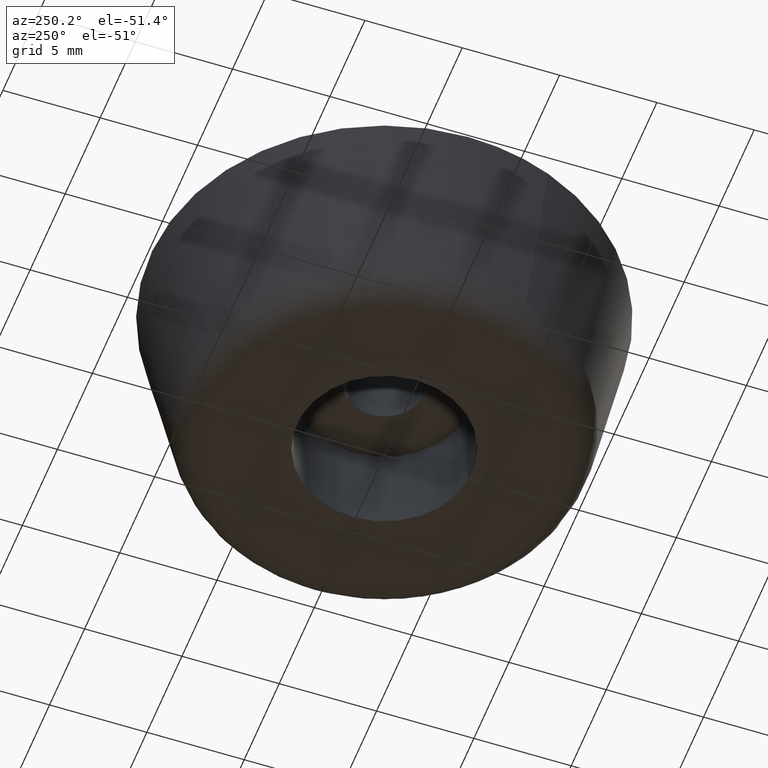
[diagram: clean part render]
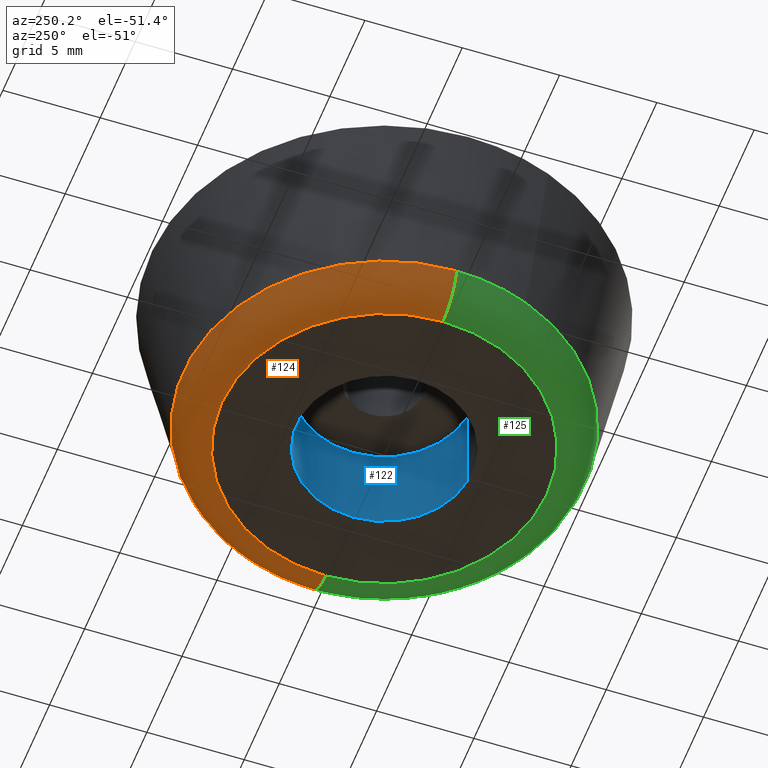
[diagram: same view with three faces highlighted in distinct colors, each labeled with its STEP entity id]
A machine part, auxiliary view with three faces highlighted in distinct colors.
Their STEP definitions:

[orange] entity #124 — the highlighted face is a freeform B-spline surface patch.
#124=ADVANCED_FACE('',(#259),#258,.T.);
#258=( BOUNDED_SURFACE() B_SPLINE_SURFACE( 2,2,((#404,#405,#406,#407,#408),(#409,#410,#411,#412,#413),(#414,#415,#416,#417,#418),(#419,#420,#421,#422,#423),(#424,#425,#426,#427,#428)), .UNSPECIFIED.,.F.,.F.,.F.) B_SPLINE_SURFACE_WITH_KNOTS((3,2,3),(3,2,3),(0.00000000000E+000,5.00000000000E-001,1.00000000000E+000),(0.00000000000E+000,5.00000000000E-001,1.00000000000E+000), .UNSPECIFIED. ) GEOMETRIC_REPRESENTATION_ITEM() RATIONAL_B_SPLINE_SURFACE(((1.00000000000E+000,7.73342134340E-001,1.00000000000E+000,7.73342134340E-001,1.00000000000E+000),(7.07106781187E-001,5.46835467369E-001,7.07106781187E-001,5.46835467369E-001,7.07106781187E-001),(1.00000000000E+000,7.73342134340E-001,1.00000000000E+000,7.73342134340E-001,1.00000000000E+000),(7.07106781187E-001,5.46835467369E-001,7.07106781187E-001,5.46835467369E-001,7.07106781187E-001),(1.00000000000E+000,7.73342134340E-001,1.00000000000E+000,7.73342134340E-001,1.00000000000E+000))) REPRESENTATION_ITEM('') SURFACE() );
#259=FACE_OUTER_BOUND('',#429,.T.);
#404=CARTESIAN_POINT('',(6.39923102714E+000,-1.19843337755E-014,1.60776777301E+000));
#405=CARTESIAN_POINT('',(6.72078454483E+000,-3.58160320841E-015,4.59397402656E-015));
#406=CARTESIAN_POINT('',(8.36039238717E+000,-4.93087802339E-015,4.44089209850E-015));
#407=CARTESIAN_POINT('',(1.00000002295E+001,-6.28015283836E-015,4.01972727324E-015));
#408=CARTESIAN_POINT('',(1.03215537472E+001,-1.52121124710E-014,1.60776777301E+000));
#409=CARTESIAN_POINT('',(6.39923102714E+000,6.39923102714E+000,1.60776777301E+000));
#410=CARTESIAN_POINT('',(6.72078454483E+000,6.72078454483E+000,4.07327598544E-014));
#411=CARTESIAN_POINT('',(8.36039238717E+000,8.36039238717E+000,4.96595549086E-014));
#412=CARTESIAN_POINT('',(1.00000002295E+001,1.00000002295E+001,5.80248791283E-014));
#413=CARTESIAN_POINT('',(1.03215537472E+001,1.03215537472E+001,1.60776777301E+000));
#414=CARTESIAN_POINT('',(5.65792915640E-015,6.39923102714E+000,1.60776777301E+000));
#415=CARTESIAN_POINT('',(5.94223316345E-015,6.72078454483E+000,4.07715194857E-014));
#416=CARTESIAN_POINT('',(7.39190500323E-015,8.36039238717E+000,4.95159468983E-014));
#417=CARTESIAN_POINT('',(8.84157684300E-015,1.00000002295E+001,5.79989220853E-014));
#418=CARTESIAN_POINT('',(9.12588085005E-015,1.03215537472E+001,1.60776777301E+000));
#419=CARTESIAN_POINT('',(-6.39923102714E+000,6.39923102714E+000,1.60776777301E+000));
#420=CARTESIAN_POINT('',(-6.72078454483E+000,6.72078454483E+000,4.07327598544E-014));
#421=CARTESIAN_POINT('',(-8.36039238717E+000,8.36039238717E+000,4.96595549086E-014));
#422=CARTESIAN_POINT('',(-1.00000002295E+001,1.00000002295E+001,5.80248791283E-014));
#423=CARTESIAN_POINT('',(-1.03215537472E+001,1.03215537472E+001,1.60776777301E+000));
#424=CARTESIAN_POINT('',(-6.39923102714E+000,-6.68475462740E-016,1.60776777301E+000));
#425=CARTESIAN_POINT('',(-6.72078454483E+000,8.30286311849E-015,4.59397402656E-015));
#426=CARTESIAN_POINT('',(-8.36039238717E+000,9.85293198307E-015,4.44089209850E-015));
#427=CARTESIAN_POINT('',(-1.00000002295E+001,1.14030008476E-014,4.01972727324E-015));
#428=CARTESIAN_POINT('',(-1.03215537472E+001,3.03964922913E-015,1.60776777301E+000));
#429=EDGE_LOOP('',(#549,#550,#551,#552,#553));
#549=ORIENTED_EDGE('',*,*,#621,.F.);
#550=ORIENTED_EDGE('',*,*,#622,.F.);
#551=ORIENTED_EDGE('',*,*,#623,.F.);
#552=ORIENTED_EDGE('',*,*,#600,.F.);
#553=ORIENTED_EDGE('',*,*,#624,.T.);
#600=EDGE_CURVE('',#713,#714,#715,.T.);
#621=EDGE_CURVE('',#858,#859,#860,.T.);
#622=EDGE_CURVE('',#866,#858,#867,.T.);
#623=EDGE_CURVE('',#714,#866,#873,.T.);
#624=EDGE_CURVE('',#713,#859,#879,.T.);
#713=VERTEX_POINT('',#982);
#714=VERTEX_POINT('',#983);
#715=CIRCLE('',#987,8.36039238718E+000);
#858=VERTEX_POINT('',#1081);
#859=VERTEX_POINT('',#1082);
#860=CIRCLE('',#1086,1.03215537472E+001);
#866=VERTEX_POINT('',#1087);
#867=CIRCLE('',#1091,1.03215537472E+001);
#873=(BOUNDED_CURVE() B_SPLINE_CURVE(2,(#1092,#1093,#1094),.UNSPECIFIED.,.F.,.F.) B_SPLINE_CURVE_WITH_KNOTS((3,3),(5.00000000000E-001,1.00000000000E+000),.UNSPECIFIED.) CURVE() GEOMETRIC_REPRESENTATION_ITEM() RATIONAL_B_SPLINE_CURVE((1.00000000000E+000,7.73342134340E-001,1.00000000000E+000)) REPRESENTATION_ITEM('') );
#879=(BOUNDED_CURVE() B_SPLINE_CURVE(3,(#1095,#1096,#1097,#1098,#1099),.UNSPECIFIED.,.F.,.F.) B_SPLINE_CURVE_WITH_KNOTS((4,1,4),(4.99999961884E-001,7.49999978724E-001,1.00000000000E+000),.UNSPECIFIED.) CURVE() GEOMETRIC_REPRESENTATION_ITEM() RATIONAL_B_SPLINE_CURVE((1.00000000000E+000,1.00000000000E+000,1.00000000000E+000,1.00000000000E+000,1.00000000000E+000)) REPRESENTATION_ITEM('') );
#982=CARTESIAN_POINT('',(-8.36039238718E+000,-9.28938916154E-016,4.33680868994E-015));
#983=CARTESIAN_POINT('',(8.36039238718E+000,-6.80936788437E-015,4.33680868994E-015));
#984=CARTESIAN_POINT('',(1.01138251249E-014,9.48800476251E-017,4.33680868994E-015));
#985=DIRECTION('',(0.00000000000E+000,0.00000000000E+000,-1.00000000000E+000));
#986=DIRECTION('',(-1.00000000000E+000,-0.00000000000E+000,-0.00000000000E+000));
#987=AXIS2_PLACEMENT_3D('',#984,#985,#986);
#1081=CARTESIAN_POINT('',(9.59764434138E+000,3.79732733021E+000,1.60776777301E+000));
#1082=CARTESIAN_POINT('',(-1.03215536146E+001,1.65442096115E-003,1.60776777301E+000));
#1083=CARTESIAN_POINT('',(1.01138251249E-014,9.48800476251E-017,1.60776777301E+000));
#1084=DIRECTION('',(-6.00116740470E-016,-2.37438365125E-016,1.00000000000E+000));
#1085=DIRECTION('',(9.29864299160E-001,3.67902684345E-001,6.45381344187E-016));
#1086=AXIS2_PLACEMENT_3D('',#1083,#1084,#1085);
#1087=CARTESIAN_POINT('',(1.03215537472E+001,-1.42569573774E-014,1.60776777301E+000));
#1088=CARTESIAN_POINT('',(1.01138251249E-014,9.48800476251E-017,1.60776777301E+000));
#1089=DIRECTION('',(-6.00116740470E-016,-2.37438365125E-016,1.00000000000E+000));
#1090=DIRECTION('',(9.29864299160E-001,3.67902684345E-001,6.45381344187E-016));
#1091=AXIS2_PLACEMENT_3D('',#1088,#1089,#1090);
#1092=CARTESIAN_POINT('',(8.36039238717E+000,-4.93087802339E-015,4.44089209850E-015));
#1093=CARTESIAN_POINT('',(1.00000002295E+001,-6.28015283836E-015,4.01972727324E-015));
#1094=CARTESIAN_POINT('',(1.03215537472E+001,-1.52121124710E-014,1.60776777301E+000));
#1095=CARTESIAN_POINT('',(-8.36039219385E+000,8.28966513076E-015,1.37840521046E-014));
#1096=CARTESIAN_POINT('',(-8.81492807613E+000,8.65770073101E-015,-2.57426640261E-003));
#1097=CARTESIAN_POINT('',(-9.73180815282E+000,7.72412864098E-015,3.27141561050E-001));
#1098=CARTESIAN_POINT('',(-1.02349361680E+001,3.94164339329E-015,1.16155381377E+000));
#1099=CARTESIAN_POINT('',(-1.03215537472E+001,1.77635683940E-015,1.60776777301E+000));

[blue] entity #122 — the highlighted cylindrical surface (partial cylindrical patch) has radius 4.5 mm, axis along (0, 0, -1).
#122=ADVANCED_FACE('',(#239),#238,.F.);
#238=CYLINDRICAL_SURFACE('',#397,4.50000000000E+000);
#239=FACE_OUTER_BOUND('',#398,.T.);
#394=CARTESIAN_POINT('',(-1.47203645283E-016,2.33186139093E-016,2.50000000000E+000));
#395=DIRECTION('',(5.39249104633E-015,6.40979302462E-016,-1.00000000000E+000));
#396=DIRECTION('',(-1.18034234657E-001,9.93009526364E-001,-1.36887088578E-027));
#397=AXIS2_PLACEMENT_3D('',#394,#395,#396);
#398=EDGE_LOOP('',(#541,#542,#543,#544));
#541=ORIENTED_EDGE('',*,*,#614,.F.);
#542=ORIENTED_EDGE('',*,*,#619,.T.);
#543=ORIENTED_EDGE('',*,*,#603,.T.);
#544=ORIENTED_EDGE('',*,*,#620,.F.);
#603=EDGE_CURVE('',#728,#727,#735,.T.);
#614=EDGE_CURVE('',#805,#804,#812,.T.);
#619=EDGE_CURVE('',#805,#728,#846,.T.);
#620=EDGE_CURVE('',#804,#727,#852,.T.);
#727=VERTEX_POINT('',#992);
#728=VERTEX_POINT('',#993);
#735=CIRCLE('',#1001,4.50000000000E+000);
#804=VERTEX_POINT('',#1047);
#805=VERTEX_POINT('',#1048);
#812=CIRCLE('',#1056,4.50000000000E+000);
#846=(BOUNDED_CURVE() B_SPLINE_CURVE(1,(#1077,#1078),.UNSPECIFIED.,.F.,.F.) B_SPLINE_CURVE_WITH_KNOTS((2,2),(8.33333383004E-002,9.16666664635E-001),.UNSPECIFIED.) CURVE() GEOMETRIC_REPRESENTATION_ITEM() RATIONAL_B_SPLINE_CURVE((1.00000000000E+000,1.00000000000E+000)) REPRESENTATION_ITEM('') );
#852=(BOUNDED_CURVE() B_SPLINE_CURVE(1,(#1079,#1080),.UNSPECIFIED.,.F.,.F.) B_SPLINE_CURVE_WITH_KNOTS((2,2),(8.33333333333E-002,9.16666666667E-001),.UNSPECIFIED.) CURVE() GEOMETRIC_REPRESENTATION_ITEM() RATIONAL_B_SPLINE_CURVE((7.50000000000E-001,7.50000000000E-001)) REPRESENTATION_ITEM('') );
#992=CARTESIAN_POINT('',(5.31926375411E-001,-4.46845099908E+000,3.15923728340E-014));
#993=CARTESIAN_POINT('',(-5.31926375409E-001,4.46845099908E+000,1.58690485392E-014));
#998=CARTESIAN_POINT('',(1.24344978758E-012,5.63993296510E-013,2.37307106866E-014));
#999=DIRECTION('',(-5.87482237134E-014,-8.75278521733E-015,-1.00000000000E+000));
#1000=DIRECTION('',(-1.18205861202E-001,9.92989110906E-001,-1.74703603276E-015));
#1001=AXIS2_PLACEMENT_3D('',#998,#999,#1000);
#1047=CARTESIAN_POINT('',(5.31152421836E-001,-4.46854306288E+000,5.00000000000E+000));
#1048=CARTESIAN_POINT('',(-5.31154055956E-001,4.46854286864E+000,5.00000000000E+000));
#1053=CARTESIAN_POINT('',(3.38928884958E-012,-5.26245713672E-013,5.00000000000E+000));
#1054=DIRECTION('',(-9.86864910779E-016,6.28036983474E-016,-1.00000000000E+000));
#1055=DIRECTION('',(1.18033871518E-001,-9.93009569528E-001,-7.40130220692E-016));
#1056=AXIS2_PLACEMENT_3D('',#1053,#1054,#1055);
#1077=CARTESIAN_POINT('',(-5.31154055956E-001,4.46854286864E+000,4.99999997020E+000));
#1078=CARTESIAN_POINT('',(-5.31154055956E-001,4.46854286864E+000,1.21919146445E-008));
#1079=CARTESIAN_POINT('',(5.31154055956E-001,-4.46854286864E+000,5.00000000000E+000));
#1080=CARTESIAN_POINT('',(5.31154055956E-001,-4.46854286864E+000,2.71634566692E-014));

[green] entity #125 — the highlighted face is a freeform B-spline surface patch.
#125=ADVANCED_FACE('',(#269),#268,.T.);
#268=( BOUNDED_SURFACE() B_SPLINE_SURFACE( 2,2,((#430,#431,#432,#433,#434),(#435,#436,#437,#438,#439),(#440,#441,#442,#443,#444),(#445,#446,#447,#448,#449),(#450,#451,#452,#453,#454)), .UNSPECIFIED.,.F.,.F.,.F.) B_SPLINE_SURFACE_WITH_KNOTS((3,2,3),(3,2,3),(0.00000000000E+000,5.00000000000E-001,1.00000000000E+000),(0.00000000000E+000,5.00000000000E-001,1.00000000000E+000), .UNSPECIFIED. ) GEOMETRIC_REPRESENTATION_ITEM() RATIONAL_B_SPLINE_SURFACE(((1.00000000000E+000,7.73342134340E-001,1.00000000000E+000,7.73342134340E-001,1.00000000000E+000),(7.07106781187E-001,5.46835467369E-001,7.07106781187E-001,5.46835467369E-001,7.07106781187E-001),(1.00000000000E+000,7.73342134340E-001,1.00000000000E+000,7.73342134340E-001,1.00000000000E+000),(7.07106781187E-001,5.46835467369E-001,7.07106781187E-001,5.46835467369E-001,7.07106781187E-001),(1.00000000000E+000,7.73342134340E-001,1.00000000000E+000,7.73342134340E-001,1.00000000000E+000))) REPRESENTATION_ITEM('') SURFACE() );
#269=FACE_OUTER_BOUND('',#455,.T.);
#430=CARTESIAN_POINT('',(-6.39923102714E+000,-6.68475462740E-016,1.60776777301E+000));
#431=CARTESIAN_POINT('',(-6.72078454483E+000,8.30286311849E-015,4.59397402656E-015));
#432=CARTESIAN_POINT('',(-8.36039238717E+000,9.85293198307E-015,4.44089209850E-015));
#433=CARTESIAN_POINT('',(-1.00000002295E+001,1.14030008476E-014,4.01972727324E-015));
#434=CARTESIAN_POINT('',(-1.03215537472E+001,3.03964922913E-015,1.60776777301E+000));
#435=CARTESIAN_POINT('',(-6.39923102714E+000,-6.39923102714E+000,1.60776777301E+000));
#436=CARTESIAN_POINT('',(-6.72078454483E+000,-6.72078454483E+000,-3.15448118013E-014));
#437=CARTESIAN_POINT('',(-8.36039238717E+000,-8.36039238717E+000,-4.07777707116E-014));
#438=CARTESIAN_POINT('',(-1.00000002295E+001,-1.00000002295E+001,-4.99854245819E-014));
#439=CARTESIAN_POINT('',(-1.03215537472E+001,-1.03215537472E+001,1.60776777301E+000));
#440=CARTESIAN_POINT('',(-6.44160893584E-015,-6.39923102714E+000,1.60776777301E+000));
#441=CARTESIAN_POINT('',(-6.76529189151E-015,-6.72078454483E+000,-3.15835714326E-014));
#442=CARTESIAN_POINT('',(-8.41575778088E-015,-8.36039238717E+000,-4.06341627013E-014));
#443=CARTESIAN_POINT('',(-1.00662236703E-014,-1.00000002295E+001,-4.99594675388E-014));
#444=CARTESIAN_POINT('',(-1.03899066259E-014,-1.03215537472E+001,1.60776777301E+000));
#445=CARTESIAN_POINT('',(6.39923102714E+000,-6.39923102714E+000,1.60776777301E+000));
#446=CARTESIAN_POINT('',(6.72078454483E+000,-6.72078454483E+000,-3.15448118013E-014));
#447=CARTESIAN_POINT('',(8.36039238717E+000,-8.36039238717E+000,-4.07777707116E-014));
#448=CARTESIAN_POINT('',(1.00000002295E+001,-1.00000002295E+001,-4.99854245819E-014));
#449=CARTESIAN_POINT('',(1.03215537472E+001,-1.03215537472E+001,1.60776777301E+000));
#450=CARTESIAN_POINT('',(6.39923102714E+000,-1.35516933344E-014,1.60776777301E+000));
#451=CARTESIAN_POINT('',(6.72078454483E+000,-5.22772066453E-015,4.59397402656E-015));
#452=CARTESIAN_POINT('',(8.36039238717E+000,-6.97858357870E-015,4.44089209850E-015));
#453=CARTESIAN_POINT('',(1.00000002295E+001,-8.72944649287E-015,4.01972727324E-015));
#454=CARTESIAN_POINT('',(1.03215537472E+001,-1.77401640227E-014,1.60776777301E+000));
#455=EDGE_LOOP('',(#554,#555,#556,#557,#558));
#554=ORIENTED_EDGE('',*,*,#601,.F.);
#555=ORIENTED_EDGE('',*,*,#623,.T.);
#556=ORIENTED_EDGE('',*,*,#625,.F.);
#557=ORIENTED_EDGE('',*,*,#626,.F.);
#558=ORIENTED_EDGE('',*,*,#624,.F.);
#601=EDGE_CURVE('',#714,#713,#721,.T.);
#623=EDGE_CURVE('',#714,#866,#873,.T.);
#624=EDGE_CURVE('',#713,#859,#879,.T.);
#625=EDGE_CURVE('',#885,#866,#886,.T.);
#626=EDGE_CURVE('',#859,#885,#892,.T.);
#713=VERTEX_POINT('',#982);
#714=VERTEX_POINT('',#983);
#721=CIRCLE('',#991,8.36039238718E+000);
#859=VERTEX_POINT('',#1082);
#866=VERTEX_POINT('',#1087);
#873=(BOUNDED_CURVE() B_SPLINE_CURVE(2,(#1092,#1093,#1094),.UNSPECIFIED.,.F.,.F.) B_SPLINE_CURVE_WITH_KNOTS((3,3),(5.00000000000E-001,1.00000000000E+000),.UNSPECIFIED.) CURVE() GEOMETRIC_REPRESENTATION_ITEM() RATIONAL_B_SPLINE_CURVE((1.00000000000E+000,7.73342134340E-001,1.00000000000E+000)) REPRESENTATION_ITEM('') );
#879=(BOUNDED_CURVE() B_SPLINE_CURVE(3,(#1095,#1096,#1097,#1098,#1099),.UNSPECIFIED.,.F.,.F.) B_SPLINE_CURVE_WITH_KNOTS((4,1,4),(4.99999961884E-001,7.49999978724E-001,1.00000000000E+000),.UNSPECIFIED.) CURVE() GEOMETRIC_REPRESENTATION_ITEM() RATIONAL_B_SPLINE_CURVE((1.00000000000E+000,1.00000000000E+000,1.00000000000E+000,1.00000000000E+000,1.00000000000E+000)) REPRESENTATION_ITEM('') );
#885=VERTEX_POINT('',#1100);
#886=CIRCLE('',#1104,1.03215537472E+001);
#892=CIRCLE('',#1108,1.03215537472E+001);
#982=CARTESIAN_POINT('',(-8.36039238718E+000,-9.28938916154E-016,4.33680868994E-015));
#983=CARTESIAN_POINT('',(8.36039238718E+000,-6.80936788437E-015,4.33680868994E-015));
#988=CARTESIAN_POINT('',(1.01138251249E-014,9.48800476251E-017,4.33680868994E-015));
#989=DIRECTION('',(0.00000000000E+000,0.00000000000E+000,-1.00000000000E+000));
#990=DIRECTION('',(-1.00000000000E+000,-0.00000000000E+000,-0.00000000000E+000));
#991=AXIS2_PLACEMENT_3D('',#988,#989,#990);
#1082=CARTESIAN_POINT('',(-1.03215536146E+001,1.65442096115E-003,1.60776777301E+000));
#1087=CARTESIAN_POINT('',(1.03215537472E+001,-1.42569573774E-014,1.60776777301E+000));
#1092=CARTESIAN_POINT('',(8.36039238717E+000,-4.93087802339E-015,4.44089209850E-015));
#1093=CARTESIAN_POINT('',(1.00000002295E+001,-6.28015283836E-015,4.01972727324E-015));
#1094=CARTESIAN_POINT('',(1.03215537472E+001,-1.52121124710E-014,1.60776777301E+000));
#1095=CARTESIAN_POINT('',(-8.36039219385E+000,8.28966513076E-015,1.37840521046E-014));
#1096=CARTESIAN_POINT('',(-8.81492807613E+000,8.65770073101E-015,-2.57426640261E-003));
#1097=CARTESIAN_POINT('',(-9.73180815282E+000,7.72412864098E-015,3.27141561050E-001));
#1098=CARTESIAN_POINT('',(-1.02349361680E+001,3.94164339329E-015,1.16155381377E+000));
#1099=CARTESIAN_POINT('',(-1.03215537472E+001,1.77635683940E-015,1.60776777301E+000));
#1100=CARTESIAN_POINT('',(-9.59764600711E+000,-3.79732312010E+000,1.60776777301E+000));
#1101=CARTESIAN_POINT('',(1.01138251249E-014,9.48800476251E-017,1.60776777301E+000));
#1102=DIRECTION('',(-6.00116740470E-016,-2.37438365125E-016,1.00000000000E+000));
#1103=DIRECTION('',(9.29864299160E-001,3.67902684345E-001,6.45381344187E-016));
#1104=AXIS2_PLACEMENT_3D('',#1101,#1102,#1103);
#1105=CARTESIAN_POINT('',(1.01138251249E-014,9.48800476251E-017,1.60776777301E+000));
#1106=DIRECTION('',(-6.00116740470E-016,-2.37438365125E-016,1.00000000000E+000));
#1107=DIRECTION('',(9.29864299160E-001,3.67902684345E-001,6.45381344187E-016));
#1108=AXIS2_PLACEMENT_3D('',#1105,#1106,#1107);